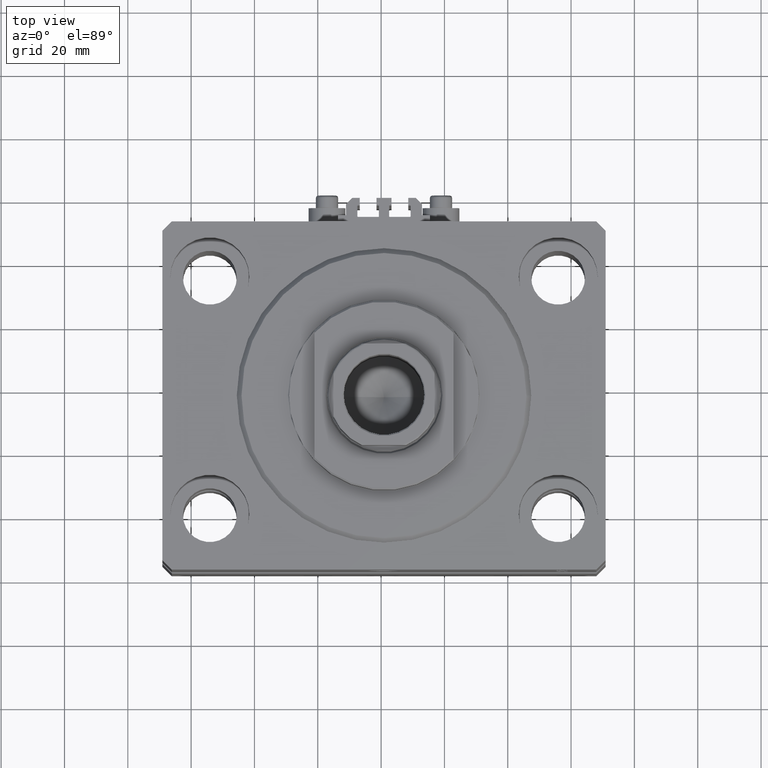
[diagram: clean part render]
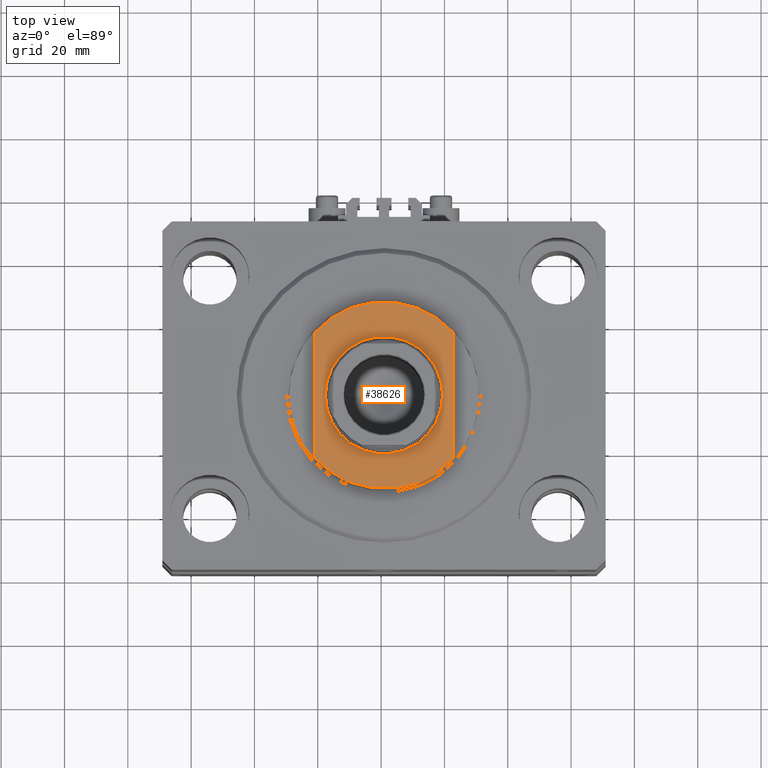
[diagram: same view with one face highlighted and labeled with its STEP entity id]
A machine part, top view. The second image highlights one B-rep face of the part: STEP entity #38626.
In plain terms, the highlighted planar face has unit normal (0, 0, 1).
Its self-contained STEP definition (entity closure, byte-faithful):
#615 = VERTEX_POINT ( 'NONE', #41923 ) ;
#2055 = FACE_OUTER_BOUND ( 'NONE', #24799, .T. ) ;
#2281 = EDGE_CURVE ( 'NONE', #27892, #3312, #20318, .T. ) ;
#3312 = VERTEX_POINT ( 'NONE', #41246 ) ;
#3479 = DIRECTION ( 'NONE',  ( -1.000000000000000000, 0.000000000000000000, 0.000000000000000000 ) ) ;
#3502 = LINE ( 'NONE', #14383, #12639 ) ;
#3864 = AXIS2_PLACEMENT_3D ( 'NONE', #10221, #47449, #47208 ) ;
#4536 = AXIS2_PLACEMENT_3D ( 'NONE', #13618, #31857, #13127 ) ;
#5071 = VERTEX_POINT ( 'NONE', #6101 ) ;
#6101 = CARTESIAN_POINT ( 'NONE',  ( 22.00000000000000000, 19.65324400703354257, -7.000000000000000000 ) ) ;
#6583 = ORIENTED_EDGE ( 'NONE', *, *, #23269, .T. ) ;
#7064 = DIRECTION ( 'NONE',  ( 0.000000000000000000, -1.000000000000000000, -0.000000000000000000 ) ) ;
#7604 = DIRECTION ( 'NONE',  ( -1.000000000000000000, 0.000000000000000000, 0.000000000000000000 ) ) ;
#8620 = ORIENTED_EDGE ( 'NONE', *, *, #2281, .T. ) ;
#8827 = EDGE_CURVE ( 'NONE', #615, #5071, #22798, .T. ) ;
#9726 = AXIS2_PLACEMENT_3D ( 'NONE', #15495, #11546, #7604 ) ;
#10221 = CARTESIAN_POINT ( 'NONE',  ( 0.000000000000000000, 0.000000000000000000, -7.000000000000000000 ) ) ;
#11546 = DIRECTION ( 'NONE',  ( -0.000000000000000000, -0.000000000000000000, 1.000000000000000000 ) ) ;
#12639 = VECTOR ( 'NONE', #40520, 1000.000000000000000 ) ;
#13127 = DIRECTION ( 'NONE',  ( -1.000000000000000000, 0.000000000000000000, 0.000000000000000000 ) ) ;
#13618 = CARTESIAN_POINT ( 'NONE',  ( 0.000000000000000000, 0.000000000000000000, -7.000000000000000000 ) ) ;
#13874 = ORIENTED_EDGE ( 'NONE', *, *, #41300, .F. ) ;
#14383 = CARTESIAN_POINT ( 'NONE',  ( -22.00000000000000000, -39.25557285278104303, -7.000000000000000000 ) ) ;
#14597 = CARTESIAN_POINT ( 'NONE',  ( 0.000000000000000000, 0.000000000000000000, -7.000000000000000000 ) ) ;
#15227 = CIRCLE ( 'NONE', #9726, 18.50000000000003197 ) ;
#15495 = CARTESIAN_POINT ( 'NONE',  ( 0.000000000000000000, 0.000000000000000000, -7.000000000000000000 ) ) ;
#15867 = VERTEX_POINT ( 'NONE', #41993 ) ;
#17099 = ORIENTED_EDGE ( 'NONE', *, *, #30698, .T. ) ;
#17617 = FACE_BOUND ( 'NONE', #31002, .T. ) ;
#18407 = EDGE_CURVE ( 'NONE', #3312, #27892, #15227, .T. ) ;
#18714 = CIRCLE ( 'NONE', #43909, 29.50000000000000000 ) ;
#20318 = CIRCLE ( 'NONE', #4536, 18.50000000000003197 ) ;
#21991 = DIRECTION ( 'NONE',  ( 0.000000000000000000, 0.000000000000000000, -1.000000000000000000 ) ) ;
#22798 = CIRCLE ( 'NONE', #36153, 29.50000000000000000 ) ;
#23269 = EDGE_CURVE ( 'NONE', #5071, #15867, #25553, .T. ) ;
#24799 = EDGE_LOOP ( 'NONE', ( #32548, #6583, #17099, #13874 ) ) ;
#25553 = LINE ( 'NONE', #33203, #29570 ) ;
#26388 = ORIENTED_EDGE ( 'NONE', *, *, #18407, .T. ) ;
#27892 = VERTEX_POINT ( 'NONE', #48559 ) ;
#29570 = VECTOR ( 'NONE', #7064, 1000.000000000000000 ) ;
#30321 = VERTEX_POINT ( 'NONE', #42505 ) ;
#30698 = EDGE_CURVE ( 'NONE', #15867, #30321, #18714, .T. ) ;
#31002 = EDGE_LOOP ( 'NONE', ( #26388, #8620 ) ) ;
#31857 = DIRECTION ( 'NONE',  ( -0.000000000000000000, -0.000000000000000000, 1.000000000000000000 ) ) ;
#32548 = ORIENTED_EDGE ( 'NONE', *, *, #8827, .T. ) ;
#33203 = CARTESIAN_POINT ( 'NONE',  ( 22.00000000000000000, -39.25557285278104303, -7.000000000000000000 ) ) ;
#35018 = DIRECTION ( 'NONE',  ( -1.000000000000000000, 0.000000000000000000, 0.000000000000000000 ) ) ;
#36153 = AXIS2_PLACEMENT_3D ( 'NONE', #14597, #21991, #3479 ) ;
#38626 = ADVANCED_FACE ( 'NONE', ( #17617, #2055 ), #47699, .T. ) ;
#40520 = DIRECTION ( 'NONE',  ( -0.000000000000000000, -1.000000000000000000, -0.000000000000000000 ) ) ;
#41246 = CARTESIAN_POINT ( 'NONE',  ( -18.50000000000003197, 0.000000000000000000, -7.000000000000000000 ) ) ;
#41300 = EDGE_CURVE ( 'NONE', #615, #30321, #3502, .T. ) ;
#41923 = CARTESIAN_POINT ( 'NONE',  ( -22.00000000000000000, 19.65324400703354257, -7.000000000000000000 ) ) ;
#41993 = CARTESIAN_POINT ( 'NONE',  ( 22.00000000000000000, -19.65324400703354257, -7.000000000000000000 ) ) ;
#42505 = CARTESIAN_POINT ( 'NONE',  ( -22.00000000000000000, -19.65324400703354257, -7.000000000000000000 ) ) ;
#42921 = DIRECTION ( 'NONE',  ( 0.000000000000000000, 0.000000000000000000, -1.000000000000000000 ) ) ;
#43909 = AXIS2_PLACEMENT_3D ( 'NONE', #46846, #42921, #35018 ) ;
#46846 = CARTESIAN_POINT ( 'NONE',  ( 0.000000000000000000, 0.000000000000000000, -7.000000000000000000 ) ) ;
#47208 = DIRECTION ( 'NONE',  ( -1.000000000000000000, 0.000000000000000000, -0.000000000000000000 ) ) ;
#47449 = DIRECTION ( 'NONE',  ( 0.000000000000000000, 0.000000000000000000, -1.000000000000000000 ) ) ;
#47699 = PLANE ( 'NONE',  #3864 ) ;
#48559 = CARTESIAN_POINT ( 'NONE',  ( 18.50000000000003197, 2.265596578422607341E-15, -7.000000000000000000 ) ) ;